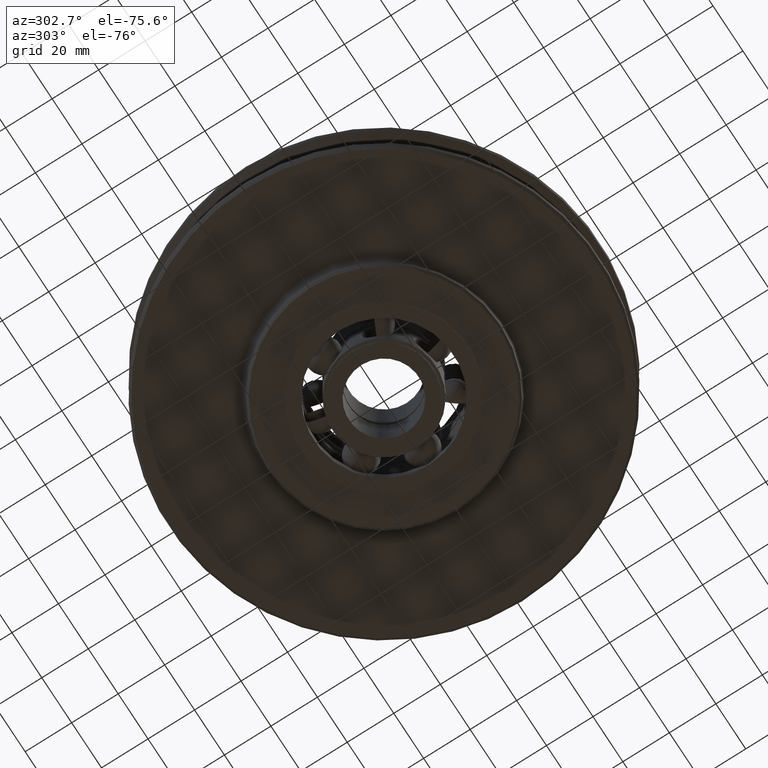
[diagram: clean part render]
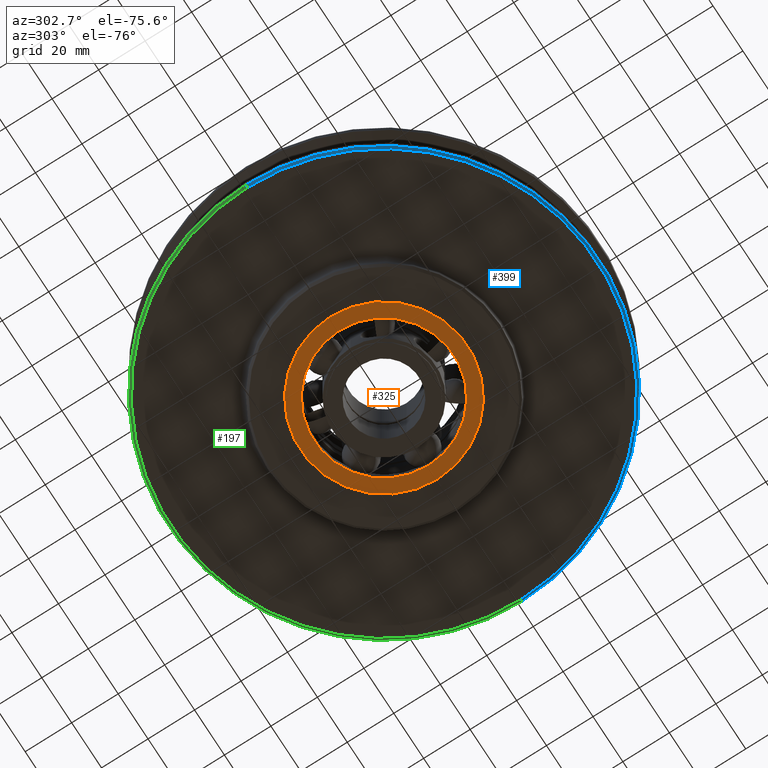
[diagram: same view with three faces highlighted in distinct colors, each labeled with its STEP entity id]
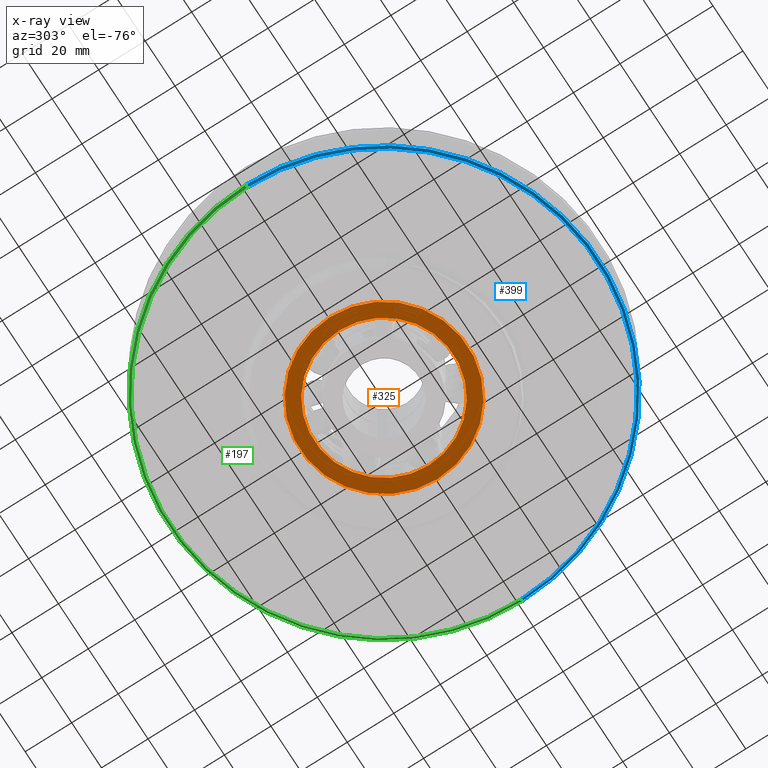
[diagram: x-ray of the same camera — body ghosted, the three highlighted faces saturated]
A machine part, auxiliary view with three faces highlighted in distinct colors.
The next image is the same camera in x-ray (body ghosted, the three faces saturated) — at least one of them is partly hidden behind the body in this view.
Their STEP definitions:

[orange] entity #325 — the highlighted planar face has unit normal (0, 0, -1).
#325=ADVANCED_FACE('',(#699,#700),#701,.T.);
#699=FACE_BOUND('',#1117,.T.);
#700=FACE_OUTER_BOUND('',#1118,.T.);
#701=PLANE('',#1119);
#1117=EDGE_LOOP('',(#2151,#2152));
#1118=EDGE_LOOP('',(#2153,#2154));
#1119=AXIS2_PLACEMENT_3D('',#2155,#2156,#2157);
#2151=ORIENTED_EDGE('',*,*,#2969,.T.);
#2152=ORIENTED_EDGE('',*,*,#2880,.T.);
#2153=ORIENTED_EDGE('',*,*,#2918,.T.);
#2154=ORIENTED_EDGE('',*,*,#2940,.T.);
#2155=CARTESIAN_POINT('',(0.0,0.0,-20.25));
#2156=DIRECTION('',(0.0,0.0,-1.0));
#2157=DIRECTION('',(1.0,0.0,0.0));
#2880=EDGE_CURVE('',#3621,#3619,#3622,.T.);
#2918=EDGE_CURVE('',#3679,#3683,#3685,.T.);
#2940=EDGE_CURVE('',#3683,#3679,#3715,.T.);
#2969=EDGE_CURVE('',#3619,#3621,#3752,.T.);
#3619=VERTEX_POINT('',#6989);
#3621=VERTEX_POINT('',#6992);
#3622=CIRCLE('',#6993,29.95);
#3679=VERTEX_POINT('',#7294);
#3683=VERTEX_POINT('',#7299);
#3685=CIRCLE('',#7302,36.0);
#3715=CIRCLE('',#7336,36.0);
#3752=CIRCLE('',#7612,29.95);
#6989=CARTESIAN_POINT('',(29.95,0.0,-20.25));
#6992=CARTESIAN_POINT('',(-29.95,-3.66781716344632E-015,-20.25));
#6993=AXIS2_PLACEMENT_3D('',#8948,#8949,#8950);
#7294=CARTESIAN_POINT('',(36.0,0.0,-20.25));
#7299=CARTESIAN_POINT('',(-36.0,-4.40872847693047E-015,-20.25));
#7302=AXIS2_PLACEMENT_3D('',#8995,#8996,#8997);
#7336=AXIS2_PLACEMENT_3D('',#9032,#9033,#9034);
#7612=AXIS2_PLACEMENT_3D('',#9059,#9060,#9061);
#8948=CARTESIAN_POINT('',(0.0,0.0,-20.25));
#8949=DIRECTION('',(0.0,-0.0,1.0));
#8950=DIRECTION('',(1.0,0.0,0.0));
#8995=CARTESIAN_POINT('',(0.0,0.0,-20.25));
#8996=DIRECTION('',(0.0,0.0,-1.0));
#8997=DIRECTION('',(1.0,0.0,0.0));
#9032=CARTESIAN_POINT('',(0.0,0.0,-20.25));
#9033=DIRECTION('',(0.0,0.0,-1.0));
#9034=DIRECTION('',(1.0,0.0,0.0));
#9059=CARTESIAN_POINT('',(0.0,0.0,-20.25));
#9060=DIRECTION('',(0.0,-0.0,1.0));
#9061=DIRECTION('',(1.0,0.0,0.0));

[blue] entity #399 — the highlighted conical surface has half-angle 45 deg.
#399=ADVANCED_FACE('',(#822),#823,.T.);
#822=FACE_OUTER_BOUND('',#1240,.T.);
#823=CONICAL_SURFACE('',#1241,92.0,0.785398163397448);
#1240=EDGE_LOOP('',(#2521,#2522,#2523,#2524));
#1241=AXIS2_PLACEMENT_3D('',#2525,#2526,#2527);
#2521=ORIENTED_EDGE('',*,*,#2665,.T.);
#2522=ORIENTED_EDGE('',*,*,#3079,.F.);
#2523=ORIENTED_EDGE('',*,*,#2667,.T.);
#2524=ORIENTED_EDGE('',*,*,#3077,.T.);
#2525=CARTESIAN_POINT('',(0.0,0.0,-13.5));
#2526=DIRECTION('',(-0.0,-0.0,1.0));
#2527=DIRECTION('',(1.0,0.0,0.0));
#2665=EDGE_CURVE('',#3262,#3256,#3263,.T.);
#2667=EDGE_CURVE('',#3258,#3264,#3266,.T.);
#3077=EDGE_CURVE('',#3264,#3262,#3868,.T.);
#3079=EDGE_CURVE('',#3258,#3256,#3870,.T.);
#3256=VERTEX_POINT('',#5115);
#3258=VERTEX_POINT('',#5118);
#3262=VERTEX_POINT('',#5123);
#3263=LINE('',#5124,#5125);
#3264=VERTEX_POINT('',#5126);
#3266=LINE('',#5128,#5129);
#3868=CIRCLE('',#8501,91.5);
#3870=CIRCLE('',#8503,92.5);
#5115=CARTESIAN_POINT('',(92.5,0.0,-13.0));
#5118=CARTESIAN_POINT('',(-92.5,1.1327982892113E-014,-13.0));
#5123=CARTESIAN_POINT('',(91.5,0.0,-14.0));
#5124=CARTESIAN_POINT('',(92.0,-1.12667505521556E-014,-13.5));
#5125=VECTOR('',#8657,1.0);
#5126=CARTESIAN_POINT('',(-91.5,1.12055182121983E-014,-14.0));
#5128=CARTESIAN_POINT('',(-92.0,1.12667505521556E-014,-13.5));
#5129=VECTOR('',#8661,1.0);
#8501=AXIS2_PLACEMENT_3D('',#9131,#9132,#9133);
#8503=AXIS2_PLACEMENT_3D('',#9134,#9135,#9136);
#8657=DIRECTION('',(0.707106781186548,-8.65956056235493E-017,0.707106781186548));
#8661=DIRECTION('',(0.707106781186548,-8.65956056235493E-017,-0.707106781186548));
#9131=CARTESIAN_POINT('',(0.0,0.0,-14.0));
#9132=DIRECTION('',(0.0,0.0,1.0));
#9133=DIRECTION('',(1.0,0.0,0.0));
#9134=CARTESIAN_POINT('',(0.0,0.0,-13.0));
#9135=DIRECTION('',(0.0,0.0,1.0));
#9136=DIRECTION('',(1.0,0.0,0.0));

[green] entity #197 — the highlighted conical surface has half-angle 45 deg.
#197=ADVANCED_FACE('',(#493),#494,.T.);
#493=FACE_OUTER_BOUND('',#911,.T.);
#494=CONICAL_SURFACE('',#912,92.0,0.785398163397448);
#911=EDGE_LOOP('',(#1433,#1434,#1435,#1436));
#912=AXIS2_PLACEMENT_3D('',#1437,#1438,#1439);
#1433=ORIENTED_EDGE('',*,*,#2665,.F.);
#1434=ORIENTED_EDGE('',*,*,#2666,.T.);
#1435=ORIENTED_EDGE('',*,*,#2667,.F.);
#1436=ORIENTED_EDGE('',*,*,#2662,.F.);
#1437=CARTESIAN_POINT('',(0.0,0.0,-13.5));
#1438=DIRECTION('',(-0.0,-0.0,1.0));
#1439=DIRECTION('',(1.0,0.0,0.0));
#2662=EDGE_CURVE('',#3256,#3258,#3259,.T.);
#2665=EDGE_CURVE('',#3262,#3256,#3263,.T.);
#2666=EDGE_CURVE('',#3262,#3264,#3265,.T.);
#2667=EDGE_CURVE('',#3258,#3264,#3266,.T.);
#3256=VERTEX_POINT('',#5115);
#3258=VERTEX_POINT('',#5118);
#3259=CIRCLE('',#5119,92.5);
#3262=VERTEX_POINT('',#5123);
#3263=LINE('',#5124,#5125);
#3264=VERTEX_POINT('',#5126);
#3265=CIRCLE('',#5127,91.5);
#3266=LINE('',#5128,#5129);
#5115=CARTESIAN_POINT('',(92.5,0.0,-13.0));
#5118=CARTESIAN_POINT('',(-92.5,1.1327982892113E-014,-13.0));
#5119=AXIS2_PLACEMENT_3D('',#8653,#8654,#8655);
#5123=CARTESIAN_POINT('',(91.5,0.0,-14.0));
#5124=CARTESIAN_POINT('',(92.0,-1.12667505521556E-014,-13.5));
#5125=VECTOR('',#8657,1.0);
#5126=CARTESIAN_POINT('',(-91.5,1.12055182121983E-014,-14.0));
#5127=AXIS2_PLACEMENT_3D('',#8658,#8659,#8660);
#5128=CARTESIAN_POINT('',(-92.0,1.12667505521556E-014,-13.5));
#5129=VECTOR('',#8661,1.0);
#8653=CARTESIAN_POINT('',(0.0,0.0,-13.0));
#8654=DIRECTION('',(0.0,0.0,1.0));
#8655=DIRECTION('',(1.0,0.0,0.0));
#8657=DIRECTION('',(0.707106781186548,-8.65956056235493E-017,0.707106781186548));
#8658=CARTESIAN_POINT('',(0.0,0.0,-14.0));
#8659=DIRECTION('',(0.0,0.0,1.0));
#8660=DIRECTION('',(1.0,0.0,0.0));
#8661=DIRECTION('',(0.707106781186548,-8.65956056235493E-017,-0.707106781186548));